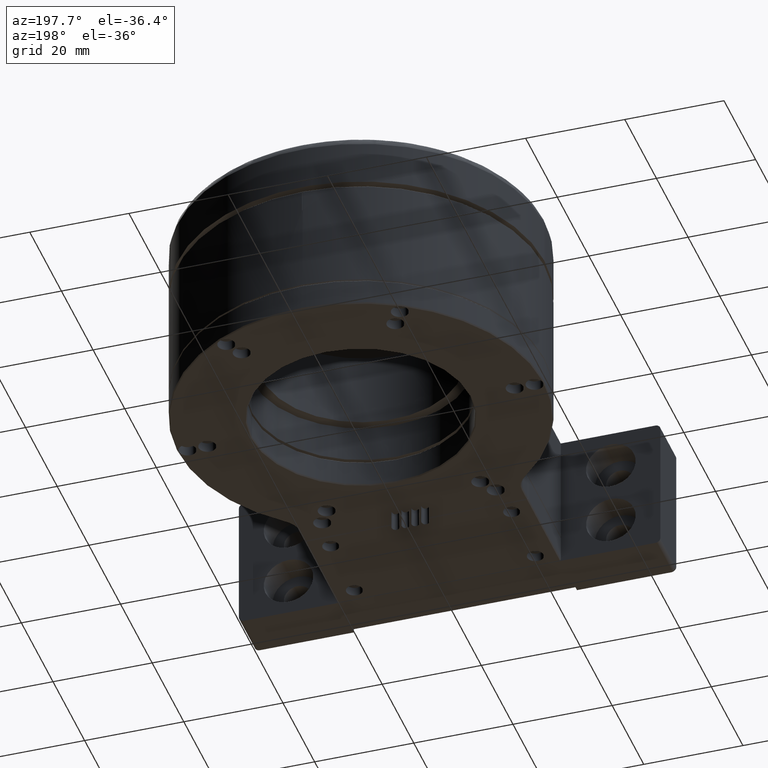
[diagram: clean part render]
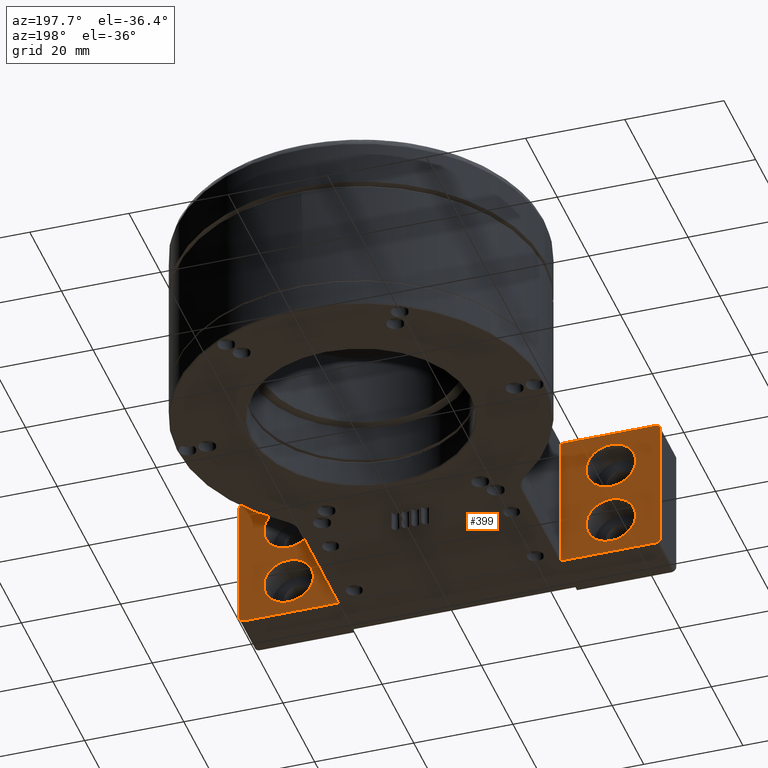
[diagram: same view with one face highlighted and labeled with its STEP entity id]
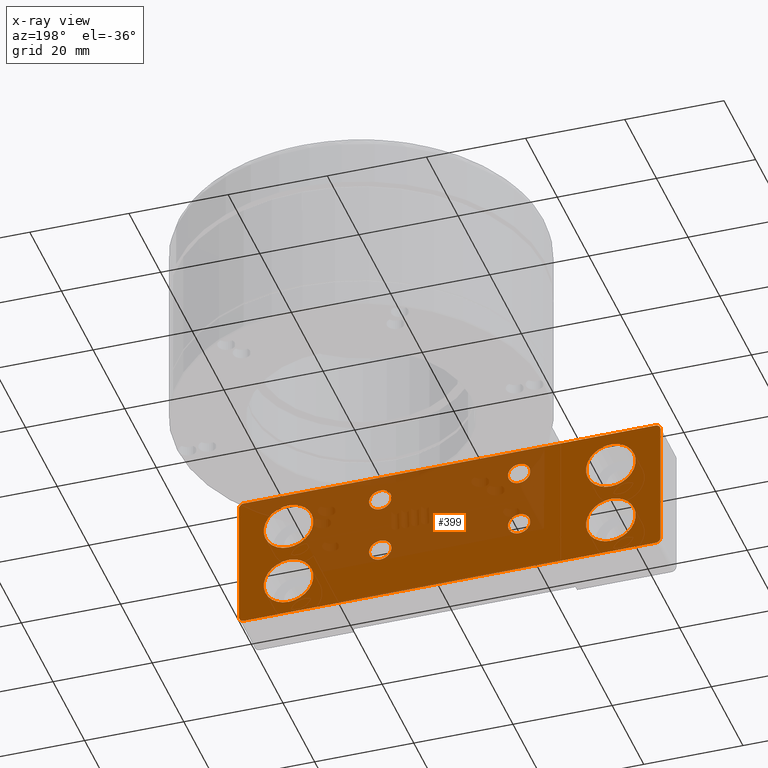
[diagram: x-ray of the same camera — body ghosted, the highlighted face saturated]
A machine part, auxiliary view. The second image highlights one B-rep face of the part: STEP entity #399.
The next image is the same camera in x-ray: the body ghosted, the highlighted face saturated — about 45% of this face is hidden behind the body in this view.
In plain terms, the highlighted planar face has unit normal (0, -1, 0).
Its self-contained STEP definition (entity closure, byte-faithful):
#21 = CARTESIAN_POINT ( 'NONE',  ( -1.734723475976807094E-15, 0.000000000000000000, 28.05000000000000426 ) ) ;
#23 = FACE_BOUND ( 'NONE', #7684, .T. ) ;
#57 = EDGE_CURVE ( 'NONE', #12084, #12084, #4355, .T. ) ;
#71 = VECTOR ( 'NONE', #1972, 1000.000000000000000 ) ;
#91 = LINE ( 'NONE', #9747, #3946 ) ;
#170 = CARTESIAN_POINT ( 'NONE',  ( -42.49999999999999289, 0.000000000000000000, 27.05000000000000426 ) ) ;
#181 = ORIENTED_EDGE ( 'NONE', *, *, #1316, .F. ) ;
#224 = EDGE_CURVE ( 'NONE', #7962, #5457, #11146, .T. ) ;
#279 = AXIS2_PLACEMENT_3D ( 'NONE', #11266, #8450, #2570 ) ;
#354 = DIRECTION ( 'NONE',  ( 0.000000000000000000, -1.000000000000000000, 0.000000000000000000 ) ) ;
#399 = ADVANCED_FACE ( 'NONE', ( #5863, #23, #3857, #1913, #9675, #7869, #5737, #3984, #7809 ), #8617, .F. ) ;
#619 = CIRCLE ( 'NONE', #7840, 2.249999999999998668 ) ;
#678 = CARTESIAN_POINT ( 'NONE',  ( 14.00000000000000000, 1.734723475976807094E-15, 10.75000000000000533 ) ) ;
#970 = CIRCLE ( 'NONE', #8177, 4.999999999999993783 ) ;
#1021 = LINE ( 'NONE', #4848, #3388 ) ;
#1053 = DIRECTION ( 'NONE',  ( -0.000000000000000000, 1.000000000000000000, -0.000000000000000000 ) ) ;
#1094 = DIRECTION ( 'NONE',  ( 0.000000000000000000, -0.000000000000000000, -1.000000000000000000 ) ) ;
#1316 = EDGE_CURVE ( 'NONE', #2675, #2675, #970, .T. ) ;
#1455 = ORIENTED_EDGE ( 'NONE', *, *, #11551, .F. ) ;
#1471 = CARTESIAN_POINT ( 'NONE',  ( -41.49999999999999289, 0.000000000000000000, 27.05000000000000426 ) ) ;
#1504 = EDGE_CURVE ( 'NONE', #5457, #11824, #4391, .T. ) ;
#1548 = DIRECTION ( 'NONE',  ( 0.000000000000000000, 0.000000000000000000, -1.000000000000000000 ) ) ;
#1664 = EDGE_CURVE ( 'NONE', #11375, #11375, #12382, .T. ) ;
#1872 = EDGE_CURVE ( 'NONE', #6644, #5879, #10579, .T. ) ;
#1881 = CARTESIAN_POINT ( 'NONE',  ( -41.49999999999999289, 0.000000000000000000, 28.05000000000000426 ) ) ;
#1913 = FACE_BOUND ( 'NONE', #10871, .T. ) ;
#1972 = DIRECTION ( 'NONE',  ( -1.000000000000000000, -0.000000000000000000, -0.000000000000000000 ) ) ;
#2047 = DIRECTION ( 'NONE',  ( 0.000000000000000000, 0.000000000000000000, -1.000000000000000000 ) ) ;
#2097 = LINE ( 'NONE', #21, #71 ) ;
#2124 = CARTESIAN_POINT ( 'NONE',  ( 42.50000000000000711, 0.000000000000000000, 1.050000000000004041 ) ) ;
#2160 = DIRECTION ( 'NONE',  ( 0.000000000000000000, 0.000000000000000000, -1.000000000000000000 ) ) ;
#2373 = ORIENTED_EDGE ( 'NONE', *, *, #5867, .F. ) ;
#2570 = DIRECTION ( 'NONE',  ( 0.000000000000000000, 0.000000000000000000, 1.000000000000000000 ) ) ;
#2675 = VERTEX_POINT ( 'NONE', #3675 ) ;
#2800 = DIRECTION ( 'NONE',  ( 0.000000000000000000, 0.000000000000000000, -1.000000000000000000 ) ) ;
#2991 = CARTESIAN_POINT ( 'NONE',  ( -14.00000000000000000, 1.734723475976807094E-15, 10.75000000000000000 ) ) ;
#3052 = CARTESIAN_POINT ( 'NONE',  ( -32.50000000000000000, 0.000000000000000000, 12.55000000000000249 ) ) ;
#3111 = CARTESIAN_POINT ( 'NONE',  ( 32.50000000000000000, 0.000000000000000000, 25.55000000000000071 ) ) ;
#3112 = EDGE_CURVE ( 'NONE', #11824, #8049, #6218, .T. ) ;
#3372 = DIRECTION ( 'NONE',  ( 0.000000000000000000, 0.000000000000000000, -1.000000000000000000 ) ) ;
#3388 = VECTOR ( 'NONE', #8662, 1000.000000000000000 ) ;
#3453 = CARTESIAN_POINT ( 'NONE',  ( -1.734723475976807094E-15, 0.000000000000000000, 0.05000000000000316691 ) ) ;
#3455 = ORIENTED_EDGE ( 'NONE', *, *, #1664, .F. ) ;
#3599 = CARTESIAN_POINT ( 'NONE',  ( 41.50000000000000711, 0.000000000000000000, 0.05000000000000316691 ) ) ;
#3614 = CARTESIAN_POINT ( 'NONE',  ( -14.00000000000000000, 1.734723475976807094E-15, 8.500000000000000000 ) ) ;
#3665 = ORIENTED_EDGE ( 'NONE', *, *, #4568, .F. ) ;
#3675 = CARTESIAN_POINT ( 'NONE',  ( 32.50000000000000000, 0.000000000000000000, 12.54999999999999538 ) ) ;
#3857 = FACE_BOUND ( 'NONE', #11013, .T. ) ;
#3898 = DIRECTION ( 'NONE',  ( 0.000000000000000000, 0.000000000000000000, 1.000000000000000000 ) ) ;
#3918 = ORIENTED_EDGE ( 'NONE', *, *, #224, .F. ) ;
#3925 = DIRECTION ( 'NONE',  ( 0.000000000000000000, -0.000000000000000000, -1.000000000000000000 ) ) ;
#3946 = VECTOR ( 'NONE', #3925, 1000.000000000000000 ) ;
#3984 = FACE_BOUND ( 'NONE', #6140, .T. ) ;
#3989 = CIRCLE ( 'NONE', #6582, 2.250000000000001776 ) ;
#4187 = CARTESIAN_POINT ( 'NONE',  ( -41.49999999999999289, 0.000000000000000000, 0.05000000000000316691 ) ) ;
#4217 = VERTEX_POINT ( 'NONE', #1881 ) ;
#4262 = CARTESIAN_POINT ( 'NONE',  ( -42.49999999999999289, 0.000000000000000000, 1.050000000000004041 ) ) ;
#4277 = ORIENTED_EDGE ( 'NONE', *, *, #10750, .F. ) ;
#4303 = VERTEX_POINT ( 'NONE', #7241 ) ;
#4314 = CARTESIAN_POINT ( 'NONE',  ( 41.50000000000000711, 0.000000000000000000, 1.050000000000004041 ) ) ;
#4355 = CIRCLE ( 'NONE', #11954, 2.249999999999998668 ) ;
#4391 = LINE ( 'NONE', #3453, #10976 ) ;
#4547 = AXIS2_PLACEMENT_3D ( 'NONE', #9304, #7555, #2800 ) ;
#4568 = EDGE_CURVE ( 'NONE', #12332, #7962, #91, .T. ) ;
#4760 = AXIS2_PLACEMENT_3D ( 'NONE', #11496, #4919, #1094 ) ;
#4848 = CARTESIAN_POINT ( 'NONE',  ( 42.50000000000000711, 0.000000000000000000, 14.05000000000000249 ) ) ;
#4864 = EDGE_LOOP ( 'NONE', ( #8930 ) ) ;
#4881 = CIRCLE ( 'NONE', #279, 4.999999999999995559 ) ;
#4901 = DIRECTION ( 'NONE',  ( -0.000000000000000000, 1.000000000000000000, -0.000000000000000000 ) ) ;
#4919 = DIRECTION ( 'NONE',  ( 0.000000000000000000, -1.000000000000000000, 0.000000000000000000 ) ) ;
#5038 = EDGE_LOOP ( 'NONE', ( #7935 ) ) ;
#5093 = EDGE_LOOP ( 'NONE', ( #2373, #4277, #5182, #6000, #7708, #8846, #3918, #3665 ) ) ;
#5152 = ORIENTED_EDGE ( 'NONE', *, *, #57, .F. ) ;
#5182 = ORIENTED_EDGE ( 'NONE', *, *, #1872, .F. ) ;
#5298 = DIRECTION ( 'NONE',  ( 0.000000000000000000, -1.000000000000000000, 0.000000000000000000 ) ) ;
#5457 = VERTEX_POINT ( 'NONE', #4187 ) ;
#5570 = CIRCLE ( 'NONE', #8566, 2.249999999999998668 ) ;
#5737 = FACE_BOUND ( 'NONE', #4864, .T. ) ;
#5863 = FACE_OUTER_BOUND ( 'NONE', #5093, .T. ) ;
#5867 = EDGE_CURVE ( 'NONE', #4217, #12332, #9732, .T. ) ;
#5879 = VERTEX_POINT ( 'NONE', #9108 ) ;
#5893 = CARTESIAN_POINT ( 'NONE',  ( 32.50000000000000000, 0.000000000000000000, 7.550000000000000711 ) ) ;
#5941 = AXIS2_PLACEMENT_3D ( 'NONE', #1471, #5298, #2160 ) ;
#6000 = ORIENTED_EDGE ( 'NONE', *, *, #12004, .F. ) ;
#6140 = EDGE_LOOP ( 'NONE', ( #5152 ) ) ;
#6218 = CIRCLE ( 'NONE', #11005, 1.000000000000000888 ) ;
#6308 = CARTESIAN_POINT ( 'NONE',  ( -14.00000000000000178, 1.734723475976807094E-15, 22.75000000000000000 ) ) ;
#6443 = DIRECTION ( 'NONE',  ( 0.000000000000000000, 0.000000000000000000, -1.000000000000000000 ) ) ;
#6582 = AXIS2_PLACEMENT_3D ( 'NONE', #7948, #8830, #9016 ) ;
#6635 = DIRECTION ( 'NONE',  ( 0.000000000000000000, 0.000000000000000000, 1.000000000000000000 ) ) ;
#6644 = VERTEX_POINT ( 'NONE', #12341 ) ;
#6773 = CARTESIAN_POINT ( 'NONE',  ( 32.50000000000000000, 0.000000000000000000, 20.55000000000000426 ) ) ;
#6817 = CARTESIAN_POINT ( 'NONE',  ( 41.50000000000000711, 0.000000000000000000, 27.05000000000000426 ) ) ;
#6864 = VERTEX_POINT ( 'NONE', #3111 ) ;
#7081 = EDGE_LOOP ( 'NONE', ( #1455 ) ) ;
#7222 = EDGE_CURVE ( 'NONE', #8493, #8493, #619, .T. ) ;
#7241 = CARTESIAN_POINT ( 'NONE',  ( 14.00000000000000000, 1.734723475976807094E-15, 8.500000000000007105 ) ) ;
#7268 = DIRECTION ( 'NONE',  ( 1.000000000000000000, 0.000000000000000000, 0.000000000000000000 ) ) ;
#7423 = VERTEX_POINT ( 'NONE', #7541 ) ;
#7541 = CARTESIAN_POINT ( 'NONE',  ( 13.99999999999999822, 1.734723475976807094E-15, 20.49999999999999645 ) ) ;
#7555 = DIRECTION ( 'NONE',  ( -0.000000000000000000, -1.000000000000000000, 0.000000000000000000 ) ) ;
#7559 = CARTESIAN_POINT ( 'NONE',  ( -32.50000000000000000, 0.000000000000000000, 25.55000000000000426 ) ) ;
#7684 = EDGE_LOOP ( 'NONE', ( #10581 ) ) ;
#7708 = ORIENTED_EDGE ( 'NONE', *, *, #3112, .F. ) ;
#7809 = FACE_BOUND ( 'NONE', #10014, .T. ) ;
#7840 = AXIS2_PLACEMENT_3D ( 'NONE', #2991, #10623, #2047 ) ;
#7869 = FACE_BOUND ( 'NONE', #7081, .T. ) ;
#7935 = ORIENTED_EDGE ( 'NONE', *, *, #10370, .F. ) ;
#7948 = CARTESIAN_POINT ( 'NONE',  ( 13.99999999999999822, 1.734723475976807094E-15, 22.75000000000000000 ) ) ;
#7960 = DIRECTION ( 'NONE',  ( -0.000000000000000000, 1.000000000000000000, -0.000000000000000000 ) ) ;
#7962 = VERTEX_POINT ( 'NONE', #4262 ) ;
#8049 = VERTEX_POINT ( 'NONE', #2124 ) ;
#8177 = AXIS2_PLACEMENT_3D ( 'NONE', #5893, #7960, #8843 ) ;
#8208 = DIRECTION ( 'NONE',  ( 0.000000000000000000, 1.000000000000000000, 0.000000000000000000 ) ) ;
#8450 = DIRECTION ( 'NONE',  ( -0.000000000000000000, 1.000000000000000000, -0.000000000000000000 ) ) ;
#8474 = CIRCLE ( 'NONE', #11883, 4.999999999999993783 ) ;
#8493 = VERTEX_POINT ( 'NONE', #3614 ) ;
#8566 = AXIS2_PLACEMENT_3D ( 'NONE', #678, #8208, #6443 ) ;
#8569 = AXIS2_PLACEMENT_3D ( 'NONE', #8634, #1053, #6635 ) ;
#8617 = PLANE ( 'NONE',  #4760 ) ;
#8634 = CARTESIAN_POINT ( 'NONE',  ( -32.50000000000000000, 0.000000000000000000, 20.55000000000000426 ) ) ;
#8662 = DIRECTION ( 'NONE',  ( -0.000000000000000000, 0.000000000000000000, 1.000000000000000000 ) ) ;
#8667 = ORIENTED_EDGE ( 'NONE', *, *, #7222, .F. ) ;
#8830 = DIRECTION ( 'NONE',  ( 0.000000000000000000, 1.000000000000000000, 0.000000000000000000 ) ) ;
#8843 = DIRECTION ( 'NONE',  ( 0.000000000000000000, 0.000000000000000000, 1.000000000000000000 ) ) ;
#8846 = ORIENTED_EDGE ( 'NONE', *, *, #1504, .F. ) ;
#8930 = ORIENTED_EDGE ( 'NONE', *, *, #12289, .F. ) ;
#9016 = DIRECTION ( 'NONE',  ( 0.000000000000000000, 0.000000000000000000, -1.000000000000000000 ) ) ;
#9108 = CARTESIAN_POINT ( 'NONE',  ( 41.50000000000000711, 0.000000000000000000, 28.05000000000000426 ) ) ;
#9274 = EDGE_CURVE ( 'NONE', #6864, #6864, #8474, .T. ) ;
#9304 = CARTESIAN_POINT ( 'NONE',  ( -41.49999999999999289, 0.000000000000000000, 1.050000000000004041 ) ) ;
#9675 = FACE_BOUND ( 'NONE', #5038, .T. ) ;
#9732 = CIRCLE ( 'NONE', #5941, 1.000000000000000888 ) ;
#9747 = CARTESIAN_POINT ( 'NONE',  ( -42.49999999999999289, 0.000000000000000000, 14.05000000000000249 ) ) ;
#9888 = DIRECTION ( 'NONE',  ( 0.000000000000000000, 0.000000000000000000, -1.000000000000000000 ) ) ;
#10014 = EDGE_LOOP ( 'NONE', ( #8667 ) ) ;
#10127 = DIRECTION ( 'NONE',  ( 0.000000000000000000, 1.000000000000000000, 0.000000000000000000 ) ) ;
#10370 = EDGE_CURVE ( 'NONE', #11630, #11630, #4881, .T. ) ;
#10579 = CIRCLE ( 'NONE', #11180, 1.000000000000000888 ) ;
#10581 = ORIENTED_EDGE ( 'NONE', *, *, #9274, .F. ) ;
#10623 = DIRECTION ( 'NONE',  ( 0.000000000000000000, 1.000000000000000000, 0.000000000000000000 ) ) ;
#10635 = DIRECTION ( 'NONE',  ( 0.000000000000000000, -1.000000000000000000, 0.000000000000000000 ) ) ;
#10750 = EDGE_CURVE ( 'NONE', #5879, #4217, #2097, .T. ) ;
#10871 = EDGE_LOOP ( 'NONE', ( #3455 ) ) ;
#10976 = VECTOR ( 'NONE', #7268, 1000.000000000000000 ) ;
#11005 = AXIS2_PLACEMENT_3D ( 'NONE', #4314, #354, #3372 ) ;
#11013 = EDGE_LOOP ( 'NONE', ( #181 ) ) ;
#11146 = CIRCLE ( 'NONE', #4547, 1.000000000000000888 ) ;
#11180 = AXIS2_PLACEMENT_3D ( 'NONE', #6817, #10635, #9888 ) ;
#11266 = CARTESIAN_POINT ( 'NONE',  ( -32.50000000000000000, 0.000000000000000000, 7.550000000000006040 ) ) ;
#11375 = VERTEX_POINT ( 'NONE', #7559 ) ;
#11496 = CARTESIAN_POINT ( 'NONE',  ( -1.734723475976807094E-15, 0.000000000000000000, 14.05000000000000249 ) ) ;
#11551 = EDGE_CURVE ( 'NONE', #4303, #4303, #5570, .T. ) ;
#11630 = VERTEX_POINT ( 'NONE', #3052 ) ;
#11824 = VERTEX_POINT ( 'NONE', #3599 ) ;
#11883 = AXIS2_PLACEMENT_3D ( 'NONE', #6773, #4901, #3898 ) ;
#11954 = AXIS2_PLACEMENT_3D ( 'NONE', #6308, #10127, #1548 ) ;
#11957 = CARTESIAN_POINT ( 'NONE',  ( -14.00000000000000178, 1.734723475976807094E-15, 20.50000000000000000 ) ) ;
#12004 = EDGE_CURVE ( 'NONE', #8049, #6644, #1021, .T. ) ;
#12084 = VERTEX_POINT ( 'NONE', #11957 ) ;
#12289 = EDGE_CURVE ( 'NONE', #7423, #7423, #3989, .T. ) ;
#12332 = VERTEX_POINT ( 'NONE', #170 ) ;
#12341 = CARTESIAN_POINT ( 'NONE',  ( 42.50000000000000711, 0.000000000000000000, 27.05000000000000426 ) ) ;
#12382 = CIRCLE ( 'NONE', #8569, 4.999999999999997335 ) ;